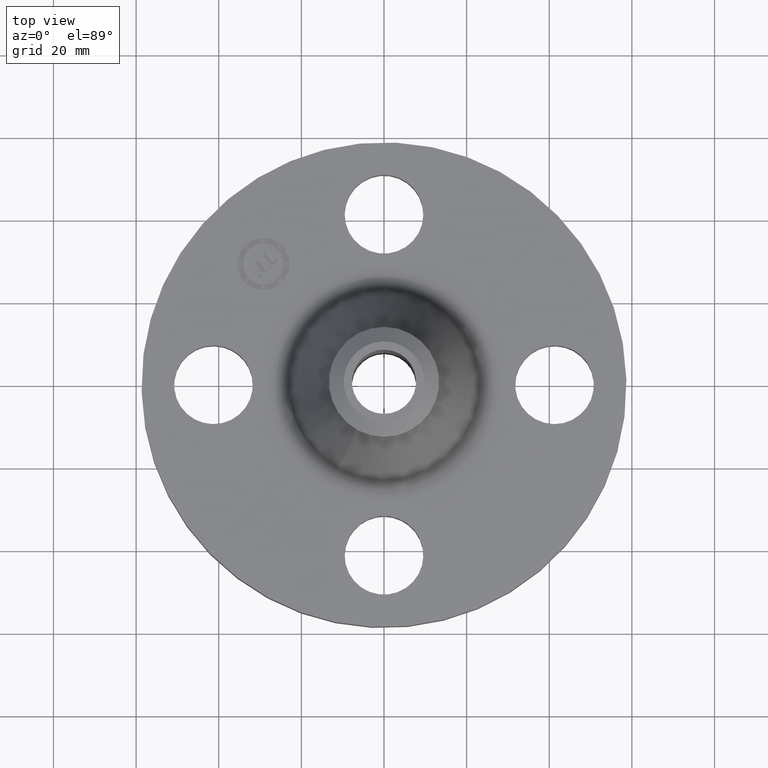
[diagram: clean part render]
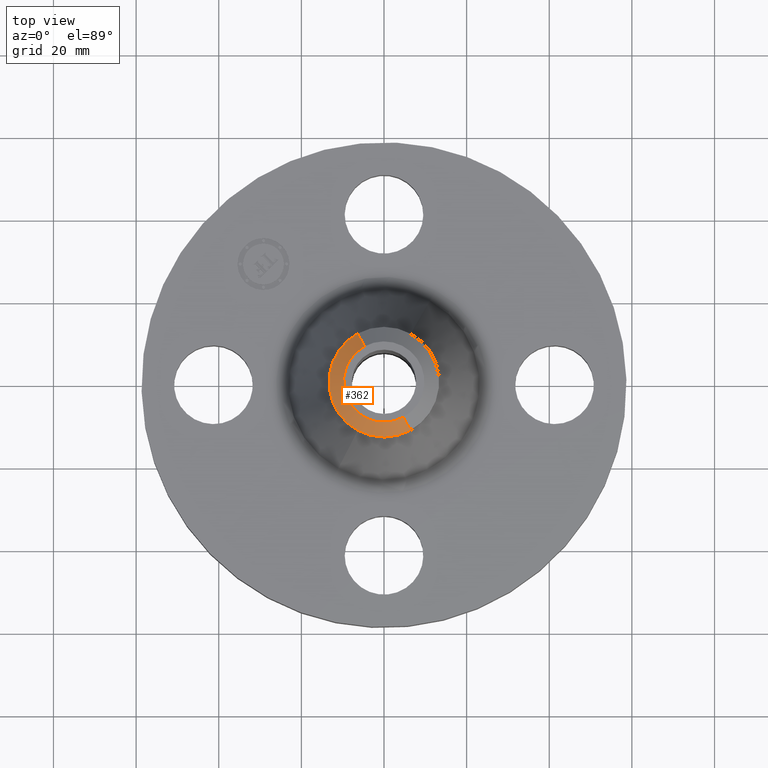
[diagram: same view with one face highlighted and labeled with its STEP entity id]
A machine part, top view. The second image highlights one B-rep face of the part: STEP entity #362.
In plain terms, the highlighted conical surface has half-angle 52.5 deg.
Its self-contained STEP definition (entity closure, byte-faithful):
#300=AXIS2_PLACEMENT_3D('Circle Axis2P3D',#298,#299,$) ;
#313=AXIS2_PLACEMENT_3D('Circle Axis2P3D',#311,#312,$) ;
#334=AXIS2_PLACEMENT_3D('Cone Axis2P3D',#331,#332,#333) ;
#345=AXIS2_PLACEMENT_3D('Circle Axis2P3D',#343,#344,$) ;
#281=CARTESIAN_POINT('Vertex',(-0.251698407768,-0.460730844994,2.08237483751)) ;
#295=CARTESIAN_POINT('Vertex',(0.251698407768,-0.460730844994,2.08237483751)) ;
#298=CARTESIAN_POINT('Axis2P3D Location',(0.,0.,2.08237483751)) ;
#311=CARTESIAN_POINT('Axis2P3D Location',(0.,0.,2.08237483751)) ;
#315=CARTESIAN_POINT('Vertex',(-0.251698407768,0.460730844994,2.08237483751)) ;
#331=CARTESIAN_POINT('Axis2P3D Location',(0.,0.,2.19000000001)) ;
#336=CARTESIAN_POINT('Line Origine',(0.218076332496,-0.39918604903,2.13618741876)) ;
#340=CARTESIAN_POINT('Vertex',(0.184454257223,-0.337641253065,2.19000000001)) ;
#343=CARTESIAN_POINT('Axis2P3D Location',(0.,0.,2.19000000001)) ;
#347=CARTESIAN_POINT('Vertex',(-0.184454257223,0.337641253065,2.19000000001)) ;
#350=CARTESIAN_POINT('Line Origine',(-0.218076332496,0.39918604903,2.13618741876)) ;
#299=DIRECTION('Axis2P3D Direction',(0.,0.,-0.0393700787402)) ;
#312=DIRECTION('Axis2P3D Direction',(0.,0.,-0.0393700787402)) ;
#332=DIRECTION('Axis2P3D Direction',(-0.,-0.,-0.0393700787402)) ;
#333=DIRECTION('Axis2P3D XDirection',(-0.0188750212049,0.0345504945626,0.)) ;
#337=DIRECTION('Vector Direction',(0.014974561121,-0.02741075027,-0.023966985394)) ;
#344=DIRECTION('Axis2P3D Direction',(0.,0.,-0.0393700787402)) ;
#351=DIRECTION('Vector Direction',(-0.014974561121,0.02741075027,-0.023966985394)) ;
#338=VECTOR('Line Direction',#337,0.0393700787402) ;
#352=VECTOR('Line Direction',#351,0.0393700787402) ;
#356=ORIENTED_EDGE('',*,*,#342,.F.) ;
#357=ORIENTED_EDGE('',*,*,#349,.F.) ;
#358=ORIENTED_EDGE('',*,*,#354,.T.) ;
#359=ORIENTED_EDGE('',*,*,#317,.T.) ;
#360=ORIENTED_EDGE('',*,*,#302,.F.) ;
#362=ADVANCED_FACE('PartBody',(#361),#335,.T.) ;
#301=CIRCLE('generated circle',#300,0.525000000002) ;
#314=CIRCLE('generated circle',#313,0.525000000002) ;
#346=CIRCLE('generated circle',#345,0.384740157482) ;
#335=CONICAL_SURFACE('Cone',#334,0.384740157482,0.916297857297) ;
#302=EDGE_CURVE('',#296,#282,#301,.T.) ;
#317=EDGE_CURVE('',#316,#282,#314,.F.) ;
#342=EDGE_CURVE('',#341,#296,#339,.T.) ;
#349=EDGE_CURVE('',#348,#341,#346,.F.) ;
#354=EDGE_CURVE('',#348,#316,#353,.T.) ;
#355=EDGE_LOOP('',(#356,#357,#358,#359,#360)) ;
#361=FACE_OUTER_BOUND('',#355,.T.) ;
#339=LINE('Line',#336,#338) ;
#353=LINE('Line',#350,#352) ;
#282=VERTEX_POINT('',#281) ;
#296=VERTEX_POINT('',#295) ;
#316=VERTEX_POINT('',#315) ;
#341=VERTEX_POINT('',#340) ;
#348=VERTEX_POINT('',#347) ;